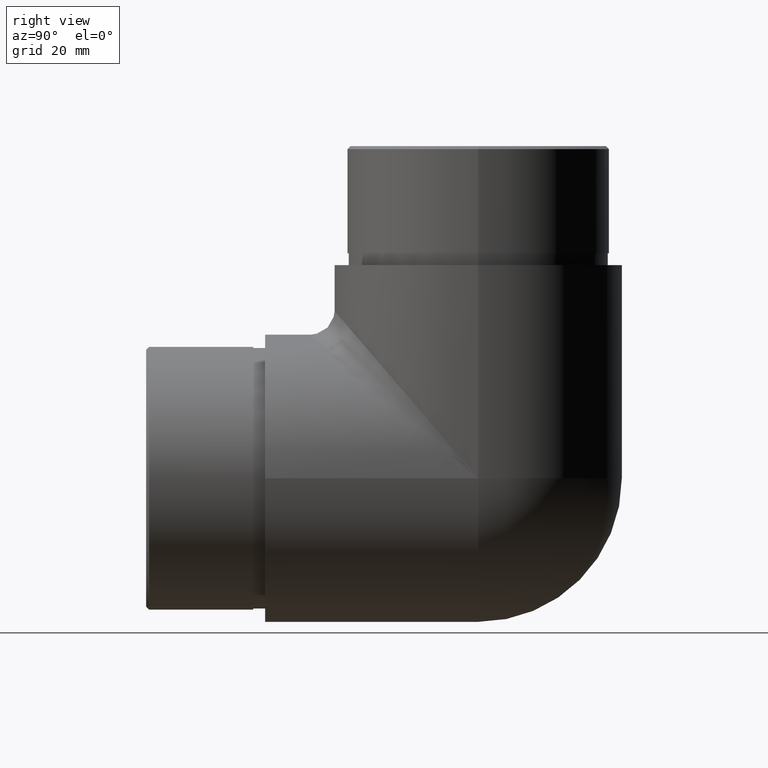
[diagram: clean part render]
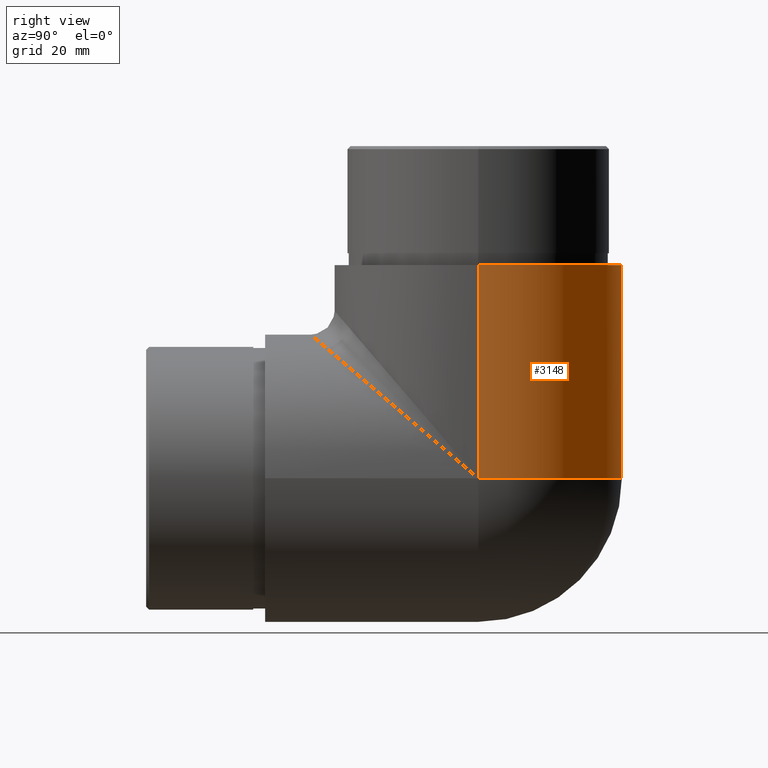
[diagram: same view with one face highlighted and labeled with its STEP entity id]
A machine part, right view. The second image highlights one B-rep face of the part: STEP entity #3148.
In plain terms, the highlighted cylindrical surface (partial cylindrical patch) has radius 24.15 mm, axis along (0, -0, 1).
Its self-contained STEP definition (entity closure, byte-faithful):
#218 = ORIENTED_EDGE ( 'NONE', *, *, #5805, .F. ) ;
#422 = ORIENTED_EDGE ( 'NONE', *, *, #11837, .T. ) ;
#439 = DIRECTION ( 'NONE',  ( 0.000000000000000000, -1.000000000000000000, -1.077467997501122326E-16 ) ) ;
#445 = DIRECTION ( 'NONE',  ( 0.000000000000000000, -1.156482317317871478E-16, 1.000000000000000000 ) ) ;
#935 = CYLINDRICAL_SURFACE ( 'NONE', #3869, 24.15000000000000213 ) ;
#1179 = CARTESIAN_POINT ( 'NONE',  ( 24.14999999999999858, 35.85000000000000853, 24.14999999999999503 ) ) ;
#1234 = CIRCLE ( 'NONE', #12505, 24.15000000000000213 ) ;
#2154 = DIRECTION ( 'NONE',  ( -2.873247993336326532E-16, 1.436623996668163513E-16, -1.000000000000000000 ) ) ;
#3084 = LINE ( 'NONE', #6402, #12633 ) ;
#3148 = ADVANCED_FACE ( 'NONE', ( #4662 ), #935, .T. ) ;
#3494 = CARTESIAN_POINT ( 'NONE',  ( -3.469446951953614189E-15, 35.85000000000000853, 2.071742468689752315 ) ) ;
#3635 = VERTEX_POINT ( 'NONE', #1179 ) ;
#3740 = EDGE_CURVE ( 'NONE', #3635, #10422, #6843, .T. ) ;
#3869 = AXIS2_PLACEMENT_3D ( 'NONE', #3494, #4478, #439 ) ;
#4478 = DIRECTION ( 'NONE',  ( 0.000000000000000000, -1.156482317317871478E-16, 1.000000000000000000 ) ) ;
#4586 = DIRECTION ( 'NONE',  ( 0.000000000000000000, -1.156482317317871478E-16, 1.000000000000000000 ) ) ;
#4662 = FACE_OUTER_BOUND ( 'NONE', #11082, .T. ) ;
#4714 = CARTESIAN_POINT ( 'NONE',  ( 24.14999999999999858, 35.85000000000000853, 2.071742468689752315 ) ) ;
#5113 = CARTESIAN_POINT ( 'NONE',  ( -3.469446951953614189E-15, 35.85000000000000853, 24.15000000000000568 ) ) ;
#5784 = AXIS2_PLACEMENT_3D ( 'NONE', #5113, #2154, #12025 ) ;
#5805 = EDGE_CURVE ( 'NONE', #10422, #11703, #1234, .T. ) ;
#6402 = CARTESIAN_POINT ( 'NONE',  ( 3.469446951953614189E-15, 60.00000000000000711, 2.063529856563289850E-15 ) ) ;
#6656 = EDGE_CURVE ( 'NONE', #9627, #3635, #8929, .T. ) ;
#6843 = LINE ( 'NONE', #4714, #11150 ) ;
#7748 = DIRECTION ( 'NONE',  ( 0.000000000000000000, -1.156482317317871478E-16, 1.000000000000000000 ) ) ;
#8040 = CARTESIAN_POINT ( 'NONE',  ( -3.469446951953614189E-15, 60.00000000000000711, 24.15000000000000924 ) ) ;
#8597 = DIRECTION ( 'NONE',  ( 0.000000000000000000, -1.000000000000000000, 0.000000000000000000 ) ) ;
#8890 = ORIENTED_EDGE ( 'NONE', *, *, #6656, .F. ) ;
#8929 = CIRCLE ( 'NONE', #5784, 24.15000000000000213 ) ;
#9067 = ORIENTED_EDGE ( 'NONE', *, *, #3740, .F. ) ;
#9627 = VERTEX_POINT ( 'NONE', #8040 ) ;
#10422 = VERTEX_POINT ( 'NONE', #12158 ) ;
#10517 = CARTESIAN_POINT ( 'NONE',  ( -3.469446951953614189E-15, 35.85000000000000142, 60.00000000000000000 ) ) ;
#11082 = EDGE_LOOP ( 'NONE', ( #8890, #422, #218, #9067 ) ) ;
#11150 = VECTOR ( 'NONE', #7748, 1000.000000000000000 ) ;
#11185 = CARTESIAN_POINT ( 'NONE',  ( -3.469446951953614189E-15, 60.00000000000000000, 60.00000000000000000 ) ) ;
#11703 = VERTEX_POINT ( 'NONE', #11185 ) ;
#11837 = EDGE_CURVE ( 'NONE', #9627, #11703, #3084, .T. ) ;
#12025 = DIRECTION ( 'NONE',  ( -1.000000000000000000, 0.000000000000000000, 2.873247993336326039E-16 ) ) ;
#12158 = CARTESIAN_POINT ( 'NONE',  ( 24.14999999999999858, 35.85000000000000853, 60.00000000000000000 ) ) ;
#12505 = AXIS2_PLACEMENT_3D ( 'NONE', #10517, #4586, #8597 ) ;
#12633 = VECTOR ( 'NONE', #445, 1000.000000000000000 ) ;